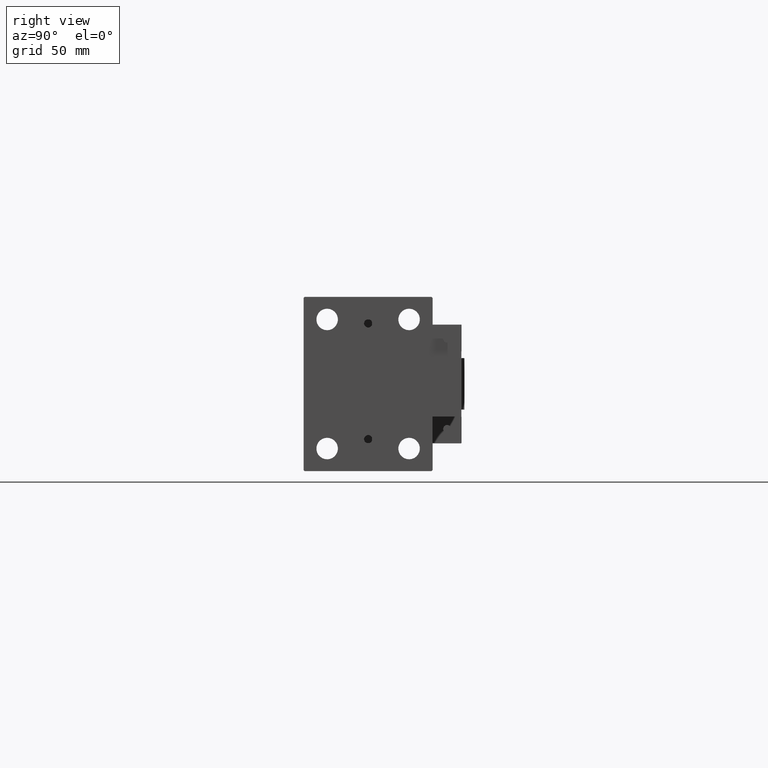
[diagram: clean part render]
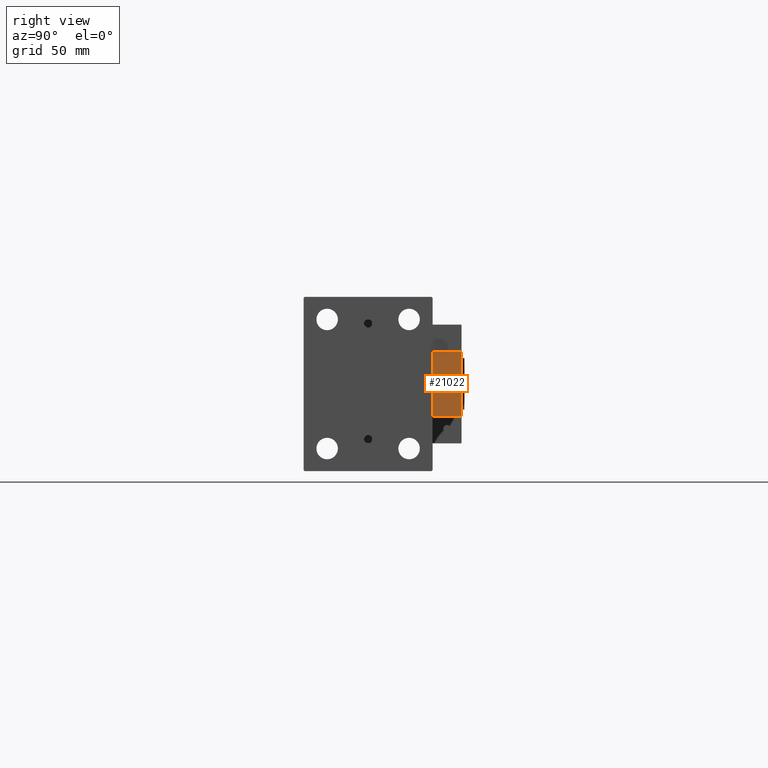
[diagram: same view with one face highlighted and labeled with its STEP entity id]
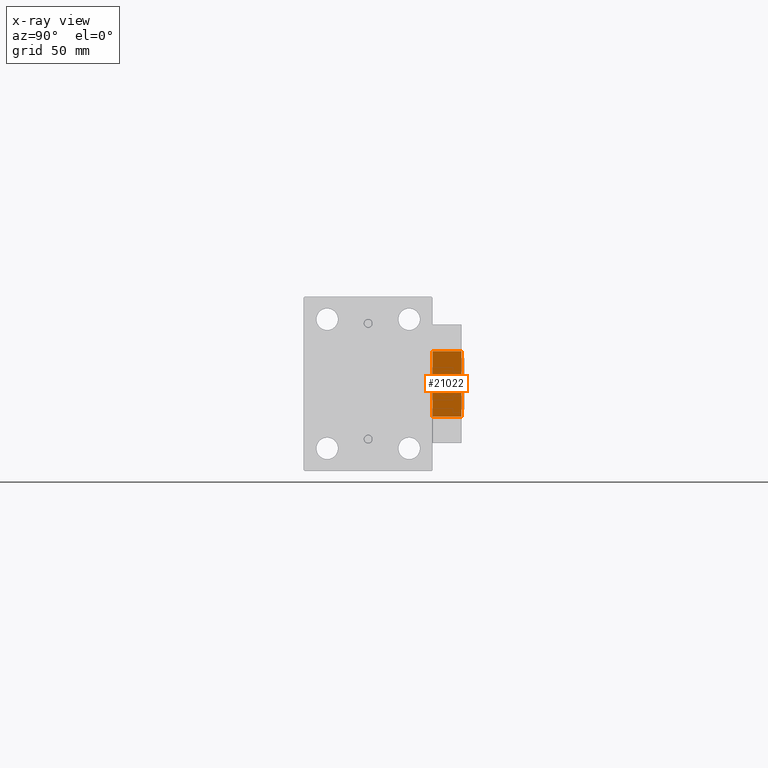
[diagram: x-ray of the same camera — body ghosted, the highlighted face saturated]
A machine part, right view. The second image highlights one B-rep face of the part: STEP entity #21022.
The next image is the same camera in x-ray: the body ghosted, the highlighted face saturated — about 0% of this face is hidden behind the body in this view.
In plain terms, the highlighted planar face has unit normal (-1, 0, 0).
Its self-contained STEP definition (entity closure, byte-faithful):
#600 = AXIS2_PLACEMENT_3D ( 'NONE', #29162, #22065, #2834 ) ;
#1346 = EDGE_CURVE ( 'NONE', #30288, #27651, #11919, .T. ) ;
#1535 = CARTESIAN_POINT ( 'NONE',  ( 10.00000000000000000, 7.000000000000000000, 15.99999999999999289 ) ) ;
#2181 = DIRECTION ( 'NONE',  ( -0.000000000000000000, 0.000000000000000000, 1.000000000000000000 ) ) ;
#2615 = ORIENTED_EDGE ( 'NONE', *, *, #15092, .T. ) ;
#2834 = DIRECTION ( 'NONE',  ( 0.000000000000000000, 0.000000000000000000, 1.000000000000000000 ) ) ;
#3281 = DIRECTION ( 'NONE',  ( 0.000000000000000000, -1.000000000000000000, 0.000000000000000000 ) ) ;
#4494 = CARTESIAN_POINT ( 'NONE',  ( 10.00000000000000000, 0.000000000000000000, 0.000000000000000000 ) ) ;
#5686 = DIRECTION ( 'NONE',  ( 0.000000000000000000, 0.000000000000000000, -1.000000000000000000 ) ) ;
#7100 = LINE ( 'NONE', #33944, #38311 ) ;
#7937 = EDGE_CURVE ( 'NONE', #13914, #48810, #26524, .T. ) ;
#11121 = EDGE_CURVE ( 'NONE', #36177, #28354, #20374, .T. ) ;
#11252 = EDGE_LOOP ( 'NONE', ( #27631, #16810 ) ) ;
#11919 = CIRCLE ( 'NONE', #600, 4.000000000000000000 ) ;
#13914 = VERTEX_POINT ( 'NONE', #30665 ) ;
#15092 = EDGE_CURVE ( 'NONE', #36177, #13914, #16727, .T. ) ;
#16727 = LINE ( 'NONE', #1535, #25204 ) ;
#16810 = ORIENTED_EDGE ( 'NONE', *, *, #42012, .T. ) ;
#16974 = DIRECTION ( 'NONE',  ( 0.000000000000000000, -1.000000000000000000, 0.000000000000000000 ) ) ;
#17323 = CARTESIAN_POINT ( 'NONE',  ( 10.00000000000000000, 7.000000000000000000, 15.99999999999999289 ) ) ;
#17614 = EDGE_LOOP ( 'NONE', ( #45977, #29921, #23590, #2615 ) ) ;
#18043 = AXIS2_PLACEMENT_3D ( 'NONE', #45394, #41833, #40841 ) ;
#18677 = DIRECTION ( 'NONE',  ( 0.000000000000000000, 0.000000000000000000, -1.000000000000000000 ) ) ;
#19629 = CIRCLE ( 'NONE', #18043, 4.000000000000000000 ) ;
#20374 = LINE ( 'NONE', #17323, #36404 ) ;
#21022 = ADVANCED_FACE ( 'NONE', ( #27524, #42977 ), #23726, .F. ) ;
#22065 = DIRECTION ( 'NONE',  ( -1.000000000000000000, 0.000000000000000000, 0.000000000000000000 ) ) ;
#23590 = ORIENTED_EDGE ( 'NONE', *, *, #11121, .F. ) ;
#23701 = EDGE_CURVE ( 'NONE', #28354, #48810, #7100, .T. ) ;
#23726 = PLANE ( 'NONE',  #35822 ) ;
#24962 = CARTESIAN_POINT ( 'NONE',  ( 10.00000000000000000, 4.898587196589412829E-16, -4.000000000000000000 ) ) ;
#25204 = VECTOR ( 'NONE', #16974, 1000.000000000000000 ) ;
#26524 = LINE ( 'NONE', #38205, #32226 ) ;
#27524 = FACE_BOUND ( 'NONE', #11252, .T. ) ;
#27631 = ORIENTED_EDGE ( 'NONE', *, *, #1346, .T. ) ;
#27651 = VERTEX_POINT ( 'NONE', #24962 ) ;
#27827 = CARTESIAN_POINT ( 'NONE',  ( 10.00000000000000000, 7.000000000000000000, 15.99999999999999289 ) ) ;
#28109 = CARTESIAN_POINT ( 'NONE',  ( 10.00000000000000000, 7.000000000000000000, -16.00000000000000711 ) ) ;
#28354 = VERTEX_POINT ( 'NONE', #28109 ) ;
#29162 = CARTESIAN_POINT ( 'NONE',  ( 10.00000000000000000, 0.000000000000000000, 0.000000000000000000 ) ) ;
#29921 = ORIENTED_EDGE ( 'NONE', *, *, #23701, .F. ) ;
#30288 = VERTEX_POINT ( 'NONE', #48878 ) ;
#30665 = CARTESIAN_POINT ( 'NONE',  ( 10.00000000000000000, -7.000000000000000000, 15.99999999999999289 ) ) ;
#32226 = VECTOR ( 'NONE', #18677, 1000.000000000000000 ) ;
#33944 = CARTESIAN_POINT ( 'NONE',  ( 10.00000000000000000, 7.000000000000000000, -16.00000000000000711 ) ) ;
#35396 = DIRECTION ( 'NONE',  ( -1.000000000000000000, 0.000000000000000000, -0.000000000000000000 ) ) ;
#35822 = AXIS2_PLACEMENT_3D ( 'NONE', #4494, #35396, #2181 ) ;
#36177 = VERTEX_POINT ( 'NONE', #27827 ) ;
#36404 = VECTOR ( 'NONE', #5686, 1000.000000000000000 ) ;
#38205 = CARTESIAN_POINT ( 'NONE',  ( 10.00000000000000000, -7.000000000000000000, 15.99999999999999289 ) ) ;
#38311 = VECTOR ( 'NONE', #3281, 1000.000000000000000 ) ;
#40841 = DIRECTION ( 'NONE',  ( 0.000000000000000000, 0.000000000000000000, 1.000000000000000000 ) ) ;
#41833 = DIRECTION ( 'NONE',  ( -1.000000000000000000, 0.000000000000000000, 0.000000000000000000 ) ) ;
#42012 = EDGE_CURVE ( 'NONE', #27651, #30288, #19629, .T. ) ;
#42977 = FACE_OUTER_BOUND ( 'NONE', #17614, .T. ) ;
#45394 = CARTESIAN_POINT ( 'NONE',  ( 10.00000000000000000, 0.000000000000000000, 0.000000000000000000 ) ) ;
#45545 = CARTESIAN_POINT ( 'NONE',  ( 10.00000000000000000, -7.000000000000000000, -16.00000000000000711 ) ) ;
#45977 = ORIENTED_EDGE ( 'NONE', *, *, #7937, .T. ) ;
#48810 = VERTEX_POINT ( 'NONE', #45545 ) ;
#48878 = CARTESIAN_POINT ( 'NONE',  ( 10.00000000000000000, 0.000000000000000000, 4.000000000000000000 ) ) ;